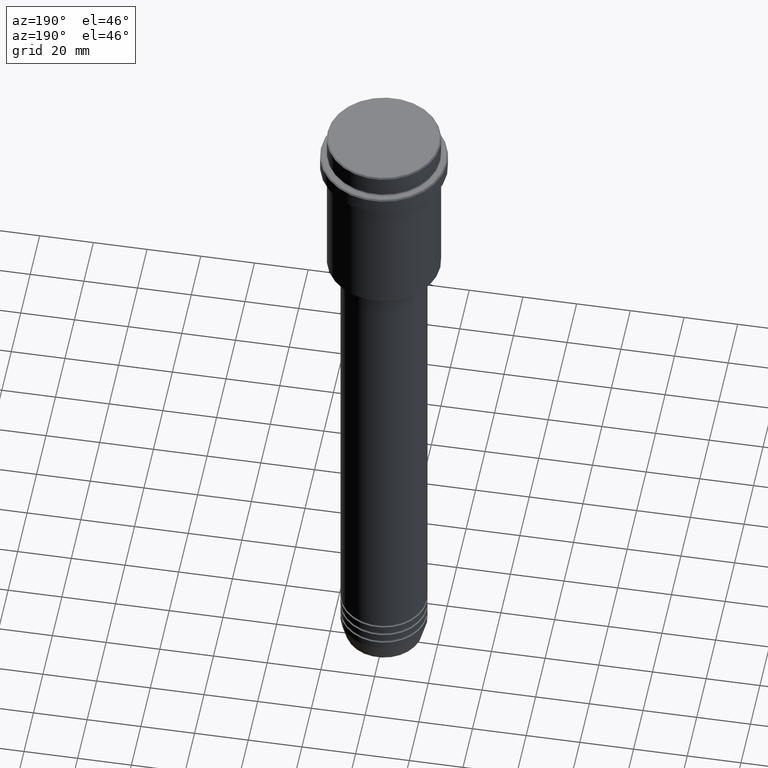
[diagram: clean part render]
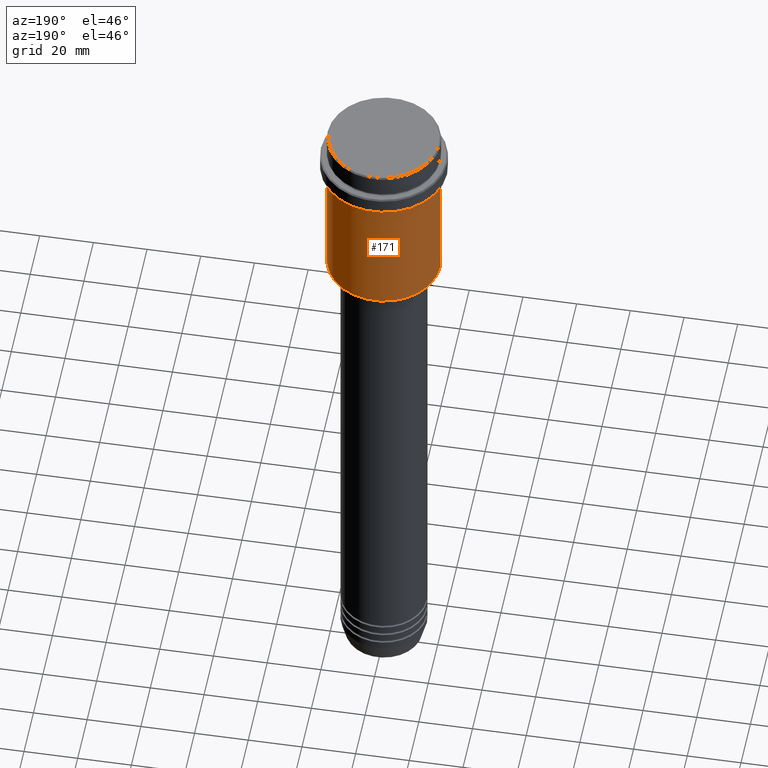
[diagram: same view with one face highlighted and labeled with its STEP entity id]
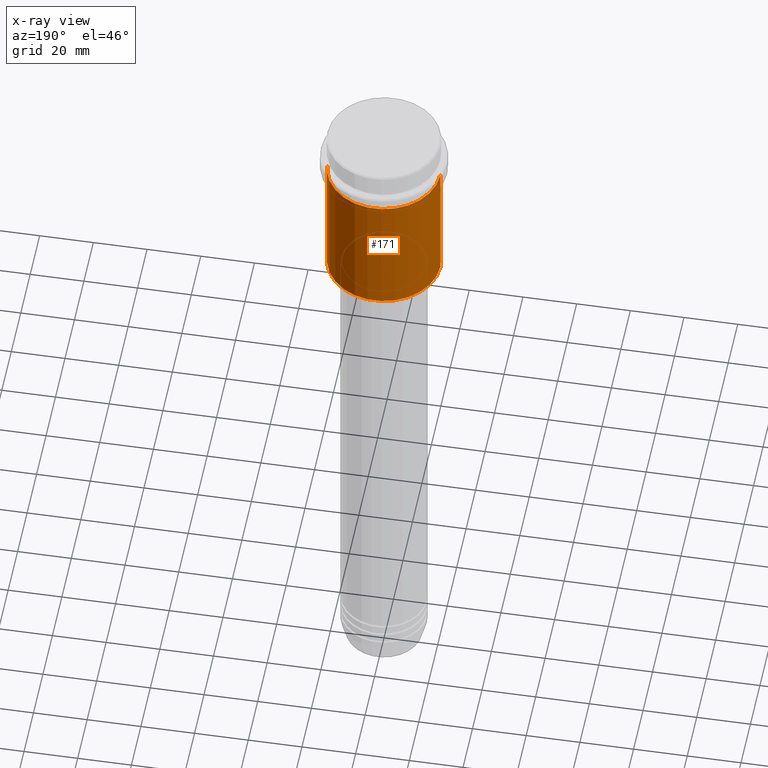
[diagram: x-ray of the same camera — body ghosted, the highlighted face saturated]
A machine part, auxiliary view. The second image highlights one B-rep face of the part: STEP entity #171.
The next image is the same camera in x-ray: the body ghosted, the highlighted face saturated — about 0% of this face is hidden behind the body in this view.
In plain terms, the highlighted cylindrical surface (partial cylindrical patch) has radius 21 mm, axis along (-0, -0, 1).
Its self-contained STEP definition (entity closure, byte-faithful):
#4 = LINE ( 'NONE', #779, #199 ) ;
#28 = ORIENTED_EDGE ( 'NONE', *, *, #770, .F. ) ;
#40 = CARTESIAN_POINT ( 'NONE',  ( -20.99999999999999645, 2.571758278209441267E-15, -16.00000000000000355 ) ) ;
#66 = VECTOR ( 'NONE', #975, 1000.000000000000000 ) ;
#72 = DIRECTION ( 'NONE',  ( 1.000000000000000000, 0.000000000000000000, 0.000000000000000000 ) ) ;
#151 = CIRCLE ( 'NONE', #379, 20.99999999999999645 ) ;
#171 = ADVANCED_FACE ( 'NONE', ( #422 ), #1406, .T. ) ;
#199 = VECTOR ( 'NONE', #1191, 1000.000000000000000 ) ;
#229 = LINE ( 'NONE', #765, #66 ) ;
#231 = CARTESIAN_POINT ( 'NONE',  ( 0.000000000000000000, 0.000000000000000000, -16.00000000000000355 ) ) ;
#302 = VERTEX_POINT ( 'NONE', #415 ) ;
#324 = EDGE_CURVE ( 'NONE', #916, #923, #4, .T. ) ;
#350 = CARTESIAN_POINT ( 'NONE',  ( -20.99999999999999645, 2.571758278209441267E-15, -64.49999999999997158 ) ) ;
#379 = AXIS2_PLACEMENT_3D ( 'NONE', #231, #991, #668 ) ;
#415 = CARTESIAN_POINT ( 'NONE',  ( 20.99999999999999645, 0.000000000000000000, -64.49999999999997158 ) ) ;
#420 = CARTESIAN_POINT ( 'NONE',  ( 0.000000000000000000, 0.000000000000000000, -64.49999999999997158 ) ) ;
#422 = FACE_OUTER_BOUND ( 'NONE', #862, .T. ) ;
#430 = EDGE_CURVE ( 'NONE', #756, #923, #151, .T. ) ;
#563 = AXIS2_PLACEMENT_3D ( 'NONE', #420, #1270, #1405 ) ;
#581 = AXIS2_PLACEMENT_3D ( 'NONE', #848, #843, #72 ) ;
#585 = CIRCLE ( 'NONE', #563, 20.99999999999999645 ) ;
#668 = DIRECTION ( 'NONE',  ( 1.000000000000000000, 0.000000000000000000, 0.000000000000000000 ) ) ;
#688 = EDGE_CURVE ( 'NONE', #302, #916, #585, .T. ) ;
#695 = ORIENTED_EDGE ( 'NONE', *, *, #324, .T. ) ;
#756 = VERTEX_POINT ( 'NONE', #983 ) ;
#765 = CARTESIAN_POINT ( 'NONE',  ( 20.99999999999999645, 0.000000000000000000, 0.000000000000000000 ) ) ;
#770 = EDGE_CURVE ( 'NONE', #302, #756, #229, .T. ) ;
#779 = CARTESIAN_POINT ( 'NONE',  ( -20.99999999999999645, 2.571758278209441267E-15, 0.000000000000000000 ) ) ;
#843 = DIRECTION ( 'NONE',  ( -0.000000000000000000, -0.000000000000000000, 1.000000000000000000 ) ) ;
#848 = CARTESIAN_POINT ( 'NONE',  ( 0.000000000000000000, 0.000000000000000000, 0.000000000000000000 ) ) ;
#862 = EDGE_LOOP ( 'NONE', ( #885, #695, #969, #28 ) ) ;
#885 = ORIENTED_EDGE ( 'NONE', *, *, #688, .T. ) ;
#916 = VERTEX_POINT ( 'NONE', #350 ) ;
#923 = VERTEX_POINT ( 'NONE', #40 ) ;
#969 = ORIENTED_EDGE ( 'NONE', *, *, #430, .F. ) ;
#975 = DIRECTION ( 'NONE',  ( -0.000000000000000000, -0.000000000000000000, 1.000000000000000000 ) ) ;
#983 = CARTESIAN_POINT ( 'NONE',  ( 20.99999999999999645, 0.000000000000000000, -16.00000000000000355 ) ) ;
#991 = DIRECTION ( 'NONE',  ( -0.000000000000000000, -0.000000000000000000, 1.000000000000000000 ) ) ;
#1191 = DIRECTION ( 'NONE',  ( -0.000000000000000000, -0.000000000000000000, 1.000000000000000000 ) ) ;
#1270 = DIRECTION ( 'NONE',  ( -0.000000000000000000, -0.000000000000000000, 1.000000000000000000 ) ) ;
#1405 = DIRECTION ( 'NONE',  ( -1.000000000000000000, 0.000000000000000000, 0.000000000000000000 ) ) ;
#1406 = CYLINDRICAL_SURFACE ( 'NONE', #581, 20.99999999999999645 ) ;